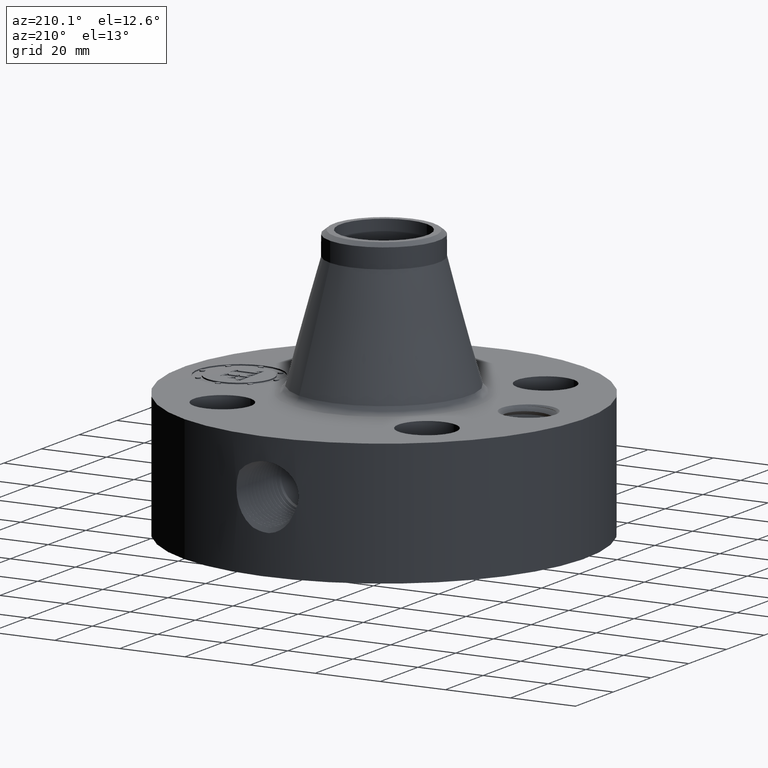
[diagram: clean part render]
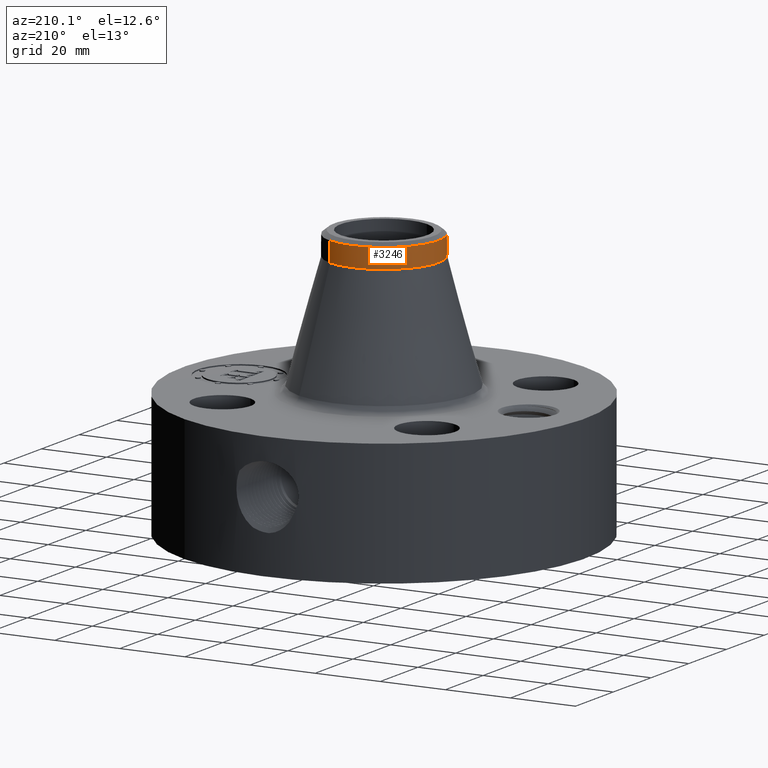
[diagram: same view with one face highlighted and labeled with its STEP entity id]
A machine part, auxiliary view. The second image highlights one B-rep face of the part: STEP entity #3246.
In plain terms, the highlighted cylindrical surface (partial cylindrical patch) has radius 16.764 mm, axis along (0, 0, -1).
Its self-contained STEP definition (entity closure, byte-faithful):
#2374=AXIS2_PLACEMENT_3D('Circle Axis2P3D',#2372,#2373,$) ;
#3191=AXIS2_PLACEMENT_3D('Cylinder Axis2P3D',#3188,#3189,#3190) ;
#3229=AXIS2_PLACEMENT_3D('Circle Axis2P3D',#3227,#3228,$) ;
#3236=AXIS2_PLACEMENT_3D('Circle Axis2P3D',#3234,#3235,$) ;
#2350=CARTESIAN_POINT('Vertex',(0.31642085548,0.57920449085,3.03022616857)) ;
#2357=CARTESIAN_POINT('Vertex',(-0.31642085548,-0.57920449085,3.03022616857)) ;
#2372=CARTESIAN_POINT('Axis2P3D Location',(0.,0.,3.03022616857)) ;
#3188=CARTESIAN_POINT('Axis2P3D Location',(0.,0.,1.65500000001)) ;
#3193=CARTESIAN_POINT('Line Origine',(-0.31642085548,-0.57920449085,3.14833640479)) ;
#3197=CARTESIAN_POINT('Vertex',(-0.31642085548,-0.57920449085,3.26644664101)) ;
#3200=CARTESIAN_POINT('Line Origine',(0.31642085548,0.57920449085,3.14833640479)) ;
#3204=CARTESIAN_POINT('Vertex',(0.31642085548,0.57920449085,3.26644664101)) ;
#3227=CARTESIAN_POINT('Axis2P3D Location',(0.,0.,3.26644664101)) ;
#3231=CARTESIAN_POINT('Vertex',(-0.31642085548,0.57920449085,3.26644664101)) ;
#3234=CARTESIAN_POINT('Axis2P3D Location',(0.,0.,3.26644664101)) ;
#2373=DIRECTION('Axis2P3D Direction',(0.,0.,-0.0393700787402)) ;
#3189=DIRECTION('Axis2P3D Direction',(0.,0.,-0.0393700787402)) ;
#3190=DIRECTION('Axis2P3D XDirection',(-0.0188750212049,-0.0345504945626,0.)) ;
#3194=DIRECTION('Vector Direction',(0.,0.,-0.0393700787402)) ;
#3201=DIRECTION('Vector Direction',(0.,0.,-0.0393700787402)) ;
#3228=DIRECTION('Axis2P3D Direction',(0.,0.,-0.0393700787402)) ;
#3235=DIRECTION('Axis2P3D Direction',(0.,0.,-0.0393700787402)) ;
#3195=VECTOR('Line Direction',#3194,0.0393700787402) ;
#3202=VECTOR('Line Direction',#3201,0.0393700787402) ;
#3240=ORIENTED_EDGE('',*,*,#3206,.F.) ;
#3241=ORIENTED_EDGE('',*,*,#2376,.F.) ;
#3242=ORIENTED_EDGE('',*,*,#3199,.T.) ;
#3243=ORIENTED_EDGE('',*,*,#3233,.F.) ;
#3244=ORIENTED_EDGE('',*,*,#3238,.T.) ;
#3246=ADVANCED_FACE('PartBody',(#3245),#3192,.T.) ;
#2375=CIRCLE('generated circle',#2374,0.660000000003) ;
#3230=CIRCLE('generated circle',#3229,0.660000000003) ;
#3237=CIRCLE('generated circle',#3236,0.660000000003) ;
#3192=CYLINDRICAL_SURFACE('generated cylinder',#3191,0.660000000003) ;
#2376=EDGE_CURVE('',#2358,#2351,#2375,.T.) ;
#3199=EDGE_CURVE('',#2358,#3198,#3196,.F.) ;
#3206=EDGE_CURVE('',#2351,#3205,#3203,.F.) ;
#3233=EDGE_CURVE('',#3232,#3198,#3230,.F.) ;
#3238=EDGE_CURVE('',#3232,#3205,#3237,.T.) ;
#3239=EDGE_LOOP('',(#3240,#3241,#3242,#3243,#3244)) ;
#3245=FACE_OUTER_BOUND('',#3239,.T.) ;
#3196=LINE('Line',#3193,#3195) ;
#3203=LINE('Line',#3200,#3202) ;
#2351=VERTEX_POINT('',#2350) ;
#2358=VERTEX_POINT('',#2357) ;
#3198=VERTEX_POINT('',#3197) ;
#3205=VERTEX_POINT('',#3204) ;
#3232=VERTEX_POINT('',#3231) ;